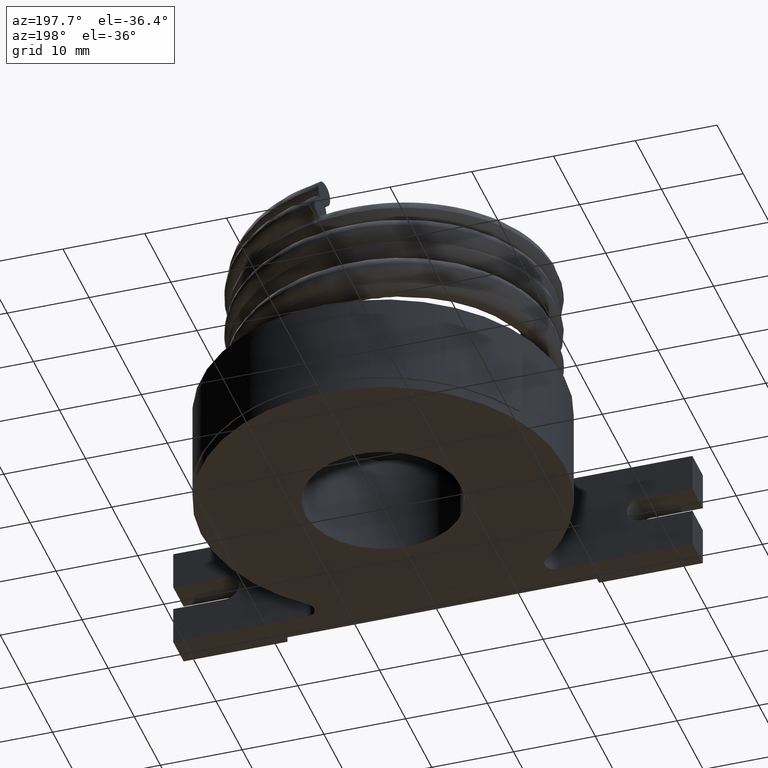
[diagram: clean part render]
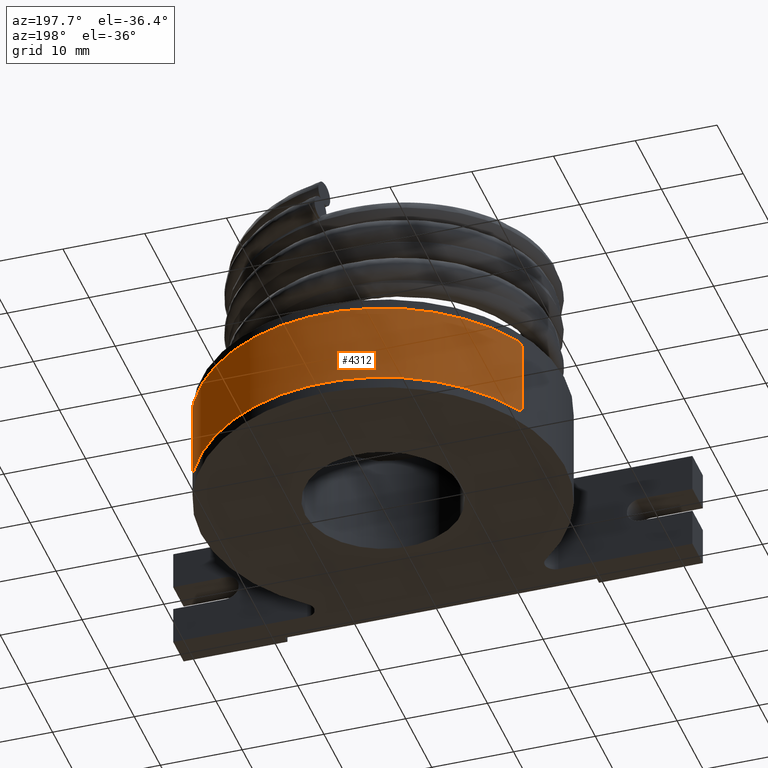
[diagram: same view with one face highlighted and labeled with its STEP entity id]
A machine part, auxiliary view. The second image highlights one B-rep face of the part: STEP entity #4312.
In plain terms, the highlighted cylindrical surface (partial cylindrical patch) has radius 22.425 mm, axis along (0, 0, 1).
Its self-contained STEP definition (entity closure, byte-faithful):
#4073=CARTESIAN_POINT('',(-19.818234552428979,10.49372213397036,1.3));
#4074=VERTEX_POINT('',#4073);
#4081=CARTESIAN_POINT('',(19.818234552428716,10.493722133970799,1.3));
#4082=VERTEX_POINT('',#4081);
#4083=CARTESIAN_POINT('',(0.0,0.0,1.3));
#4084=DIRECTION('',(0.0,0.0,1.0));
#4085=DIRECTION('',(0.88375627881499,0.467947475316495,0.0));
#4086=AXIS2_PLACEMENT_3D('',#4083,#4084,#4085);
#4087=CIRCLE('',#4086,22.425000000000001);
#4088=EDGE_CURVE('',#4082,#4074,#4087,.T.);
#4105=CARTESIAN_POINT('',(20.179977502809997,9.780037473650001,2.1));
#4106=VERTEX_POINT('',#4105);
#4107=CARTESIAN_POINT('',(20.179977502810289,9.780037473653698,2.100000000000001));
#4108=CARTESIAN_POINT('',(20.179977502810289,9.780037473653698,1.984462336982258));
#4109=CARTESIAN_POINT('',(20.168251865802194,9.804341742441595,1.860264971595347));
#4110=CARTESIAN_POINT('',(20.144692805893595,9.85251119036049,1.750038321831601));
#4111=CARTESIAN_POINT('',(20.125694659872103,9.891355278744671,1.661150989493387));
#4112=CARTESIAN_POINT('',(20.099705448337279,9.944202005819323,1.58246632068461));
#4113=CARTESIAN_POINT('',(20.069157466148965,10.005475680791852,1.51791868195858));
#4114=CARTESIAN_POINT('',(20.025159886240051,10.093726793231879,1.424952152278372));
#4115=CARTESIAN_POINT('',(19.965604314125084,10.21147493743263,1.352562099541162));
#4116=CARTESIAN_POINT('',(19.902168038021308,10.333650486946185,1.320663772645996));
#4117=CARTESIAN_POINT('',(19.874218668395596,10.387479775206941,1.306609698485396));
#4118=CARTESIAN_POINT('',(19.846391464379149,10.440545551037145,1.300000000000468));
#4119=CARTESIAN_POINT('',(19.818234552427374,10.49372213397009,1.300000000000001));
#4120=B_SPLINE_CURVE_WITH_KNOTS('',3,(#4107,#4108,#4109,#4110,#4111,#4112,#4113,#4114,#4115,#4116,#4117,#4118,#4119),.UNSPECIFIED.,.F.,.U.,(4,3,3,3,4),(-0.482356691995167,-0.44770982808854,-0.419770420394068,-0.379529912360919,-0.361800359145892),.UNSPECIFIED.);
#4121=EDGE_CURVE('',#4106,#4082,#4120,.T.);
#4170=CARTESIAN_POINT('',(20.179977502810171,9.780037473649641,10.5));
#4171=VERTEX_POINT('',#4170);
#4172=CARTESIAN_POINT('',(20.179977502809997,9.780037473650001,2.1));
#4173=DIRECTION('',(0.0,0.0,1.0));
#4174=VECTOR('',#4173,8.4);
#4175=LINE('',#4172,#4174);
#4176=EDGE_CURVE('',#4106,#4171,#4175,.T.);
#4194=CARTESIAN_POINT('',(19.818234552428372,10.493722133971515,11.300000000000004));
#4195=VERTEX_POINT('',#4194);
#4225=CARTESIAN_POINT('',(19.818234552427,10.49372213397079,11.300000000000001));
#4226=CARTESIAN_POINT('',(19.821036340875771,10.488430732127368,11.300000000000018));
#4227=CARTESIAN_POINT('',(19.823829918532027,10.483149711531299,11.299932861980237));
#4228=CARTESIAN_POINT('',(19.826614348527862,10.477880915278099,11.299799496402107));
#4229=CARTESIAN_POINT('',(19.876482939221983,10.383517816117918,11.297410945266527));
#4230=CARTESIAN_POINT('',(19.928548833808676,10.283187035605929,11.272140371185548));
#4231=CARTESIAN_POINT('',(19.974831763018869,10.192483555988325,11.224447170729947));
#4232=CARTESIAN_POINT('',(20.015878227360155,10.112042295997062,11.182149993666414));
#4233=CARTESIAN_POINT('',(20.052082856301723,10.039865725446003,11.123238081085654));
#4234=CARTESIAN_POINT('',(20.081288456498925,9.981106097366309,11.055158100432505));
#4235=CARTESIAN_POINT('',(20.12261341463001,9.897963167455762,10.958827179956302));
#4236=CARTESIAN_POINT('',(20.15481182757873,9.83185302187397,10.829417229488831));
#4237=CARTESIAN_POINT('',(20.169624996262346,9.801369930277563,10.693330237739662));
#4238=CARTESIAN_POINT('',(20.176670609802738,9.786871203672083,10.62860294189786));
#4239=CARTESIAN_POINT('',(20.179977502813728,9.780037473646601,10.564428115196433));
#4240=CARTESIAN_POINT('',(20.179977502813728,9.780037473646601,10.5));
#4241=B_SPLINE_CURVE_WITH_KNOTS('',3,(#4225,#4226,#4227,#4228,#4229,#4230,#4231,#4232,#4233,#4234,#4235,#4236,#4237,#4238,#4239,#4240),.UNSPECIFIED.,.F.,.U.,(4,3,3,3,3,4),(-0.361734678847725,-0.359960683359785,-0.328188774921197,-0.300011549991106,-0.26014170884339,-0.241178345997582),.UNSPECIFIED.);
#4242=EDGE_CURVE('',#4195,#4171,#4241,.T.);
#4247=CARTESIAN_POINT('',(0.0,0.0,0.8));
#4248=DIRECTION('',(0.0,0.0,1.0));
#4249=DIRECTION('',(1.0,0.0,0.0));
#4250=AXIS2_PLACEMENT_3D('',#4247,#4248,#4249);
#4251=CYLINDRICAL_SURFACE('',#4250,22.425000000000001);
#4252=ORIENTED_EDGE('',*,*,#4176,.F.);
#4253=ORIENTED_EDGE('',*,*,#4121,.T.);
#4254=ORIENTED_EDGE('',*,*,#4088,.T.);
#4255=CARTESIAN_POINT('',(-20.179977502810171,9.780037473649646,2.1));
#4256=VERTEX_POINT('',#4255);
#4257=CARTESIAN_POINT('',(-19.818234552427615,10.493722133969635,1.3));
#4258=CARTESIAN_POINT('',(-19.846391464381341,10.440545551033008,1.300000000000007));
#4259=CARTESIAN_POINT('',(-19.874218668399646,10.387479775199214,1.30660969848537));
#4260=CARTESIAN_POINT('',(-19.902168038027213,10.333650486934813,1.320663772647424));
#4261=CARTESIAN_POINT('',(-19.965604314131088,10.211474937420899,1.352562099543821));
#4262=CARTESIAN_POINT('',(-20.025159886245874,10.09372679322032,1.424952152282553));
#4263=CARTESIAN_POINT('',(-20.069157466154376,10.005475680781,1.517918681963747));
#4264=CARTESIAN_POINT('',(-20.099705448341513,9.944202005810748,1.582466320688579));
#4265=CARTESIAN_POINT('',(-20.125694659875602,9.891355278737551,1.661150989495943));
#4266=CARTESIAN_POINT('',(-20.144692805896582,9.852511190354392,1.750038321831904));
#4267=CARTESIAN_POINT('',(-20.168251865805125,9.804341742435575,1.860264971595572));
#4268=CARTESIAN_POINT('',(-20.179977502813188,9.78003747364772,1.984462336982363));
#4269=CARTESIAN_POINT('',(-20.179977502813188,9.78003747364772,2.1));
#4270=B_SPLINE_CURVE_WITH_KNOTS('',3,(#4257,#4258,#4259,#4260,#4261,#4262,#4263,#4264,#4265,#4266,#4267,#4268,#4269),.UNSPECIFIED.,.F.,.U.,(4,3,3,3,4),(0.361800359145277,0.379529912361516,0.41977042039481,0.447709828088569,0.482356691995165),.UNSPECIFIED.);
#4271=EDGE_CURVE('',#4074,#4256,#4270,.T.);
#4272=ORIENTED_EDGE('',*,*,#4271,.T.);
#4273=CARTESIAN_POINT('',(-20.179977502809997,9.780037473650001,10.5));
#4274=VERTEX_POINT('',#4273);
#4275=CARTESIAN_POINT('',(-20.179977502809997,9.780037473650001,2.1));
#4276=DIRECTION('',(0.0,0.0,1.0));
#4277=VECTOR('',#4276,8.4);
#4278=LINE('',#4275,#4277);
#4279=EDGE_CURVE('',#4256,#4274,#4278,.T.);
#4280=ORIENTED_EDGE('',*,*,#4279,.T.);
#4281=CARTESIAN_POINT('',(-19.818234552429328,10.493722133969648,11.300000000000004));
#4282=VERTEX_POINT('',#4281);
#4283=CARTESIAN_POINT('',(-20.179977502813667,9.780037473646722,10.500000000000002));
#4284=CARTESIAN_POINT('',(-20.179977502813667,9.780037473646722,10.564428115197433));
#4285=CARTESIAN_POINT('',(-20.176670609802574,9.786871203672419,10.628602941899878));
#4286=CARTESIAN_POINT('',(-20.169624996261962,9.801369930278348,10.69333023774263));
#4287=CARTESIAN_POINT('',(-20.154811827577824,9.83185302187583,10.829417229494382));
#4288=CARTESIAN_POINT('',(-20.12261341462786,9.897963167460167,10.958827179963844));
#4289=CARTESIAN_POINT('',(-20.081288456495546,9.981106097373115,11.05515810044025));
#4290=CARTESIAN_POINT('',(-20.052082856298977,10.039865725451484,11.123238081090046));
#4291=CARTESIAN_POINT('',(-20.01587822735809,10.112042296001128,11.182149993668741));
#4292=CARTESIAN_POINT('',(-19.974831763018059,10.192483555989915,11.224447170730723));
#4293=CARTESIAN_POINT('',(-19.92854883380712,10.283187035608961,11.272140371186802));
#4294=CARTESIAN_POINT('',(-19.876482939219539,10.383517816122614,11.297410945267506));
#4295=CARTESIAN_POINT('',(-19.826614348524771,10.477880915283951,11.299799496402251));
#4296=CARTESIAN_POINT('',(-19.823829918530286,10.483149711534589,11.299932861980269));
#4297=CARTESIAN_POINT('',(-19.821036340875391,10.488430732128091,11.300000000000002));
#4298=CARTESIAN_POINT('',(-19.818234552427985,10.493722133968937,11.300000000000001));
#4299=B_SPLINE_CURVE_WITH_KNOTS('',3,(#4283,#4284,#4285,#4286,#4287,#4288,#4289,#4290,#4291,#4292,#4293,#4294,#4295,#4296,#4297,#4298),.UNSPECIFIED.,.F.,.U.,(4,3,3,3,3,4),(0.241178345997582,0.260141708843677,0.30001154999217,0.328188774921361,0.359960683360419,0.361734678847502),.UNSPECIFIED.);
#4300=EDGE_CURVE('',#4274,#4282,#4299,.T.);
#4301=ORIENTED_EDGE('',*,*,#4300,.T.);
#4302=CARTESIAN_POINT('',(0.0,0.0,11.300000000000001));
#4303=DIRECTION('',(0.0,0.0,1.0));
#4304=DIRECTION('',(0.88375627881499,0.467947475316495,0.0));
#4305=AXIS2_PLACEMENT_3D('',#4302,#4303,#4304);
#4306=CIRCLE('',#4305,22.425000000000001);
#4307=EDGE_CURVE('',#4195,#4282,#4306,.T.);
#4308=ORIENTED_EDGE('',*,*,#4307,.F.);
#4309=ORIENTED_EDGE('',*,*,#4242,.T.);
#4310=EDGE_LOOP('',(#4252,#4253,#4254,#4272,#4280,#4301,#4308,#4309));
#4311=FACE_OUTER_BOUND('',#4310,.T.);
#4312=ADVANCED_FACE('',(#4311),#4251,.T.);